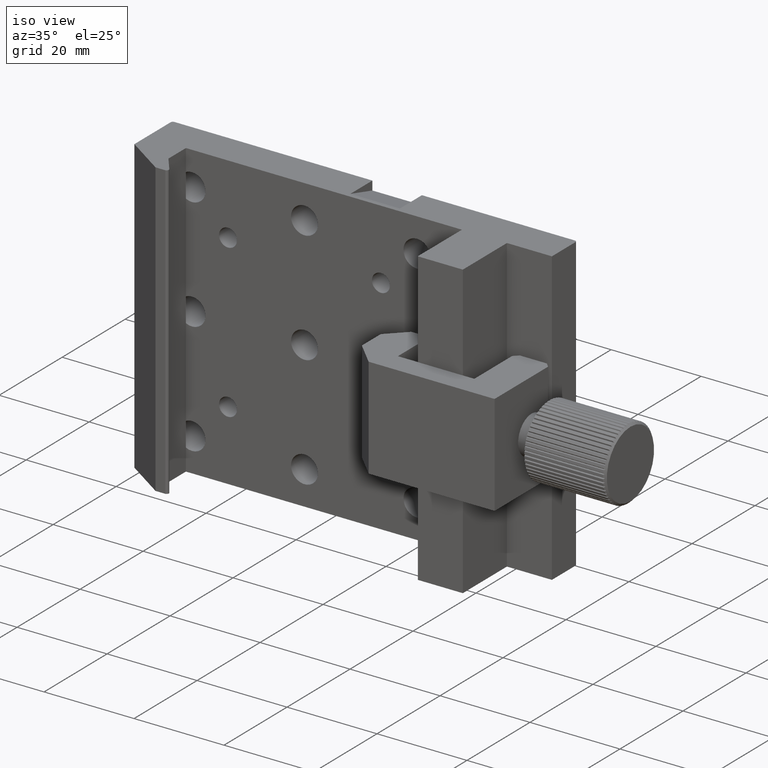
[diagram: clean part render]
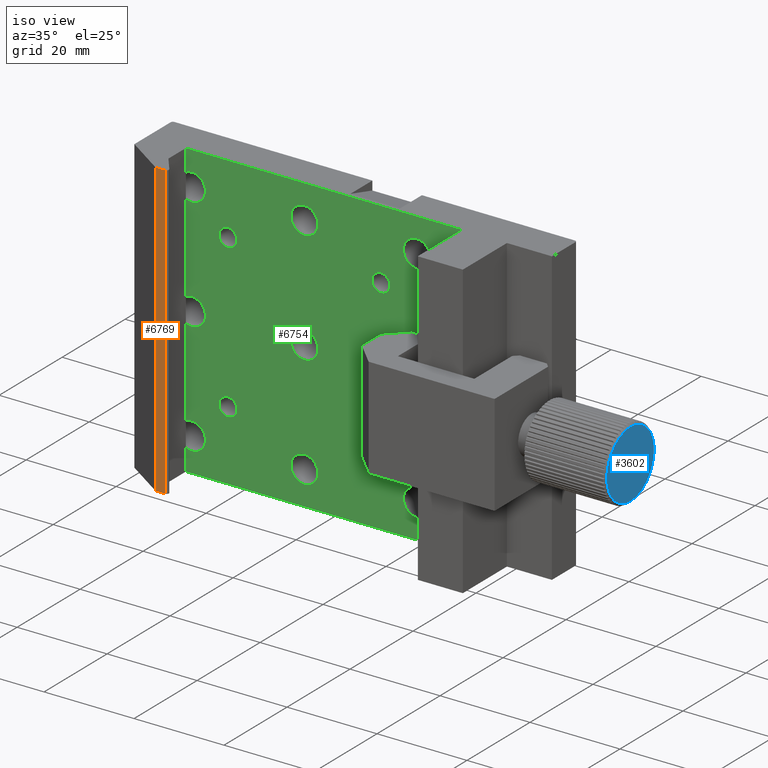
[diagram: same view with three faces highlighted in distinct colors, each labeled with its STEP entity id]
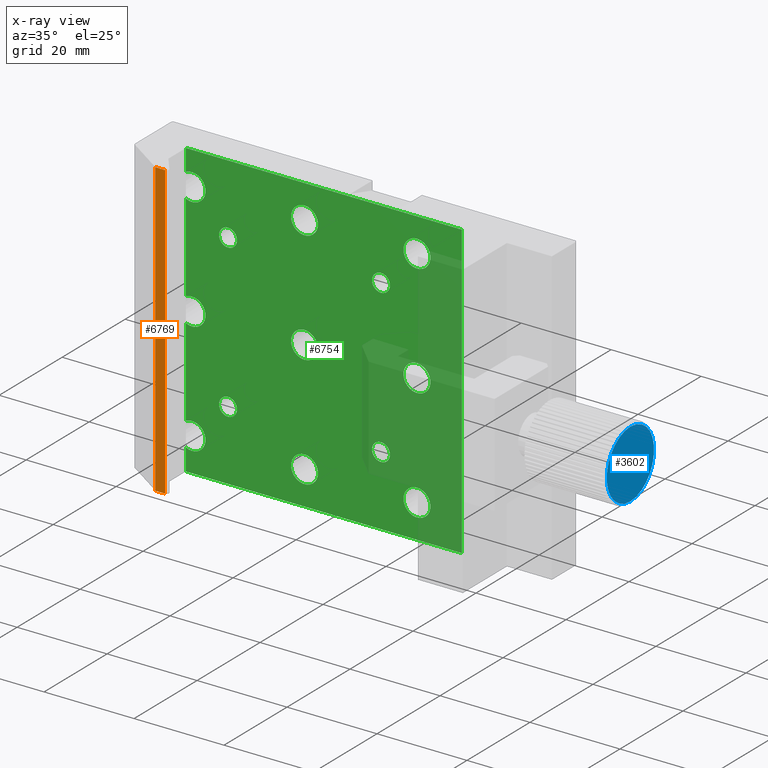
[diagram: x-ray of the same camera — body ghosted, the three highlighted faces saturated]
A machine part, iso view with three faces highlighted in distinct colors.
The next image is the same camera in x-ray (body ghosted, the three faces saturated) — at least one of them is partly hidden behind the body in this view.
Their STEP definitions:

[orange] entity #6769 — the highlighted planar face has unit normal (0, 1, -0).
#1163 = CARTESIAN_POINT ( 'NONE',  ( -68.47252651145957700, -0.9404695730432233200, 32.50000000000000000 ) ) ;
#1167 = CARTESIAN_POINT ( 'NONE',  ( -68.47252651145957700, -0.9404695730432233200, -32.50000000000000000 ) ) ;
#1169 = DIRECTION ( 'NONE',  ( 1.000000000000000000, -0.0000000000000000000, -0.0000000000000000000 ) ) ;
#1170 = DIRECTION ( 'NONE',  ( 1.000000000000000000, -0.0000000000000000000, -0.0000000000000000000 ) ) ;
#1171 = CARTESIAN_POINT ( 'NONE',  ( -70.57431584625358300, -0.9404695730432233200, 32.50000000000000000 ) ) ;
#1172 = DIRECTION ( 'NONE',  ( -0.0000000000000000000, -0.0000000000000000000, -1.000000000000000000 ) ) ;
#1399 = EDGE_LOOP ( 'NONE', ( #6667, #6666, #6665, #6664 ) ) ;
#2501 = EDGE_CURVE ( 'NONE', #5934, #5938, #4586, .T. ) ;
#2502 = EDGE_CURVE ( 'NONE', #5936, #5938, #4587, .T. ) ;
#2503 = EDGE_CURVE ( 'NONE', #5932, #5934, #4585, .T. ) ;
#2504 = EDGE_CURVE ( 'NONE', #5932, #5936, #4591, .T. ) ;
#4153 = FACE_OUTER_BOUND ( 'NONE', #1399, .T. ) ;
#4585 = LINE ( 'NONE', #1163, #4592 ) ;
#4586 = LINE ( 'NONE', #7076, #4588 ) ;
#4587 = LINE ( 'NONE', #1167, #4590 ) ;
#4588 = VECTOR ( 'NONE', #7075, 1000.000000000000000 ) ;
#4590 = VECTOR ( 'NONE', #1169, 1000.000000000000000 ) ;
#4591 = LINE ( 'NONE', #1171, #4594 ) ;
#4592 = VECTOR ( 'NONE', #1170, 1000.000000000000000 ) ;
#4594 = VECTOR ( 'NONE', #1172, 1000.000000000000000 ) ;
#4905 = CARTESIAN_POINT ( 'NONE',  ( -70.57431584625358300, -0.9404695730432233200, 32.50000000000000000 ) ) ;
#4907 = CARTESIAN_POINT ( 'NONE',  ( -68.47252651145957700, -0.9404695730432233200, 32.50000000000000000 ) ) ;
#4909 = CARTESIAN_POINT ( 'NONE',  ( -70.57431584625358300, -0.9404695730432233200, -32.50000000000000000 ) ) ;
#4911 = CARTESIAN_POINT ( 'NONE',  ( -68.47252651145957700, -0.9404695730432233200, -32.50000000000000000 ) ) ;
#5134 = CARTESIAN_POINT ( 'NONE',  ( -68.47252651145957700, -0.9404695730432233200, 32.50000000000000000 ) ) ;
#5139 = PLANE ( 'NONE',  #5192 ) ;
#5142 = DIRECTION ( 'NONE',  ( 0.0000000000000000000, 1.000000000000000000, -0.0000000000000000000 ) ) ;
#5143 = DIRECTION ( 'NONE',  ( 0.0000000000000000000, 0.0000000000000000000, 1.000000000000000000 ) ) ;
#5192 = AXIS2_PLACEMENT_3D ( 'NONE', #5134, #5142, #5143 ) ;
#5932 = VERTEX_POINT ( 'NONE', #4905 ) ;
#5934 = VERTEX_POINT ( 'NONE', #4907 ) ;
#5936 = VERTEX_POINT ( 'NONE', #4909 ) ;
#5938 = VERTEX_POINT ( 'NONE', #4911 ) ;
#6664 = ORIENTED_EDGE ( 'NONE', *, *, #2504, .T. ) ;
#6665 = ORIENTED_EDGE ( 'NONE', *, *, #2503, .F. ) ;
#6666 = ORIENTED_EDGE ( 'NONE', *, *, #2501, .F. ) ;
#6667 = ORIENTED_EDGE ( 'NONE', *, *, #2502, .T. ) ;
#6769 = ADVANCED_FACE ( 'NONE', ( #4153 ), #5139, .F. ) ;
#7075 = DIRECTION ( 'NONE',  ( -0.0000000000000000000, -0.0000000000000000000, -1.000000000000000000 ) ) ;
#7076 = CARTESIAN_POINT ( 'NONE',  ( -68.47252651145957700, -0.9404695730432233200, 32.50000000000000000 ) ) ;

[blue] entity #3602 — the highlighted planar face has unit normal (1, 0, 0).
#720 = EDGE_LOOP ( 'NONE', ( #2352 ) ) ;
#1232 = AXIS2_PLACEMENT_3D ( 'NONE', #3523, #3527, #3528 ) ;
#2352 = ORIENTED_EDGE ( 'NONE', *, *, #3372, .T. ) ;
#3181 = CARTESIAN_POINT ( 'NONE',  ( 33.58817508845302100, 1.059530426956774900, 0.0000000000000000000 ) ) ;
#3183 = DIRECTION ( 'NONE',  ( 1.000000000000000000, 0.0000000000000000000, 0.0000000000000000000 ) ) ;
#3185 = DIRECTION ( 'NONE',  ( 0.0000000000000000000, 0.0000000000000000000, -1.000000000000000000 ) ) ;
#3372 = EDGE_CURVE ( 'NONE', #4277, #4277, #6096, .T. ) ;
#3475 = AXIS2_PLACEMENT_3D ( 'NONE', #3181, #3183, #3185 ) ;
#3523 = CARTESIAN_POINT ( 'NONE',  ( 33.58817508845302100, 1.059530426956774900, 0.0000000000000000000 ) ) ;
#3524 = PLANE ( 'NONE',  #1232 ) ;
#3527 = DIRECTION ( 'NONE',  ( 1.000000000000000000, 0.0000000000000000000, 0.0000000000000000000 ) ) ;
#3528 = DIRECTION ( 'NONE',  ( 0.0000000000000000000, 0.0000000000000000000, -1.000000000000000000 ) ) ;
#3602 = ADVANCED_FACE ( 'NONE', ( #6176 ), #3524, .T. ) ;
#4277 = VERTEX_POINT ( 'NONE', #5666 ) ;
#5666 = CARTESIAN_POINT ( 'NONE',  ( 33.58817508845302100, 1.059530426956774900, -7.499999999999992900 ) ) ;
#6096 = CIRCLE ( 'NONE', #3475, 7.499999999999992900 ) ;
#6176 = FACE_OUTER_BOUND ( 'NONE', #720, .T. ) ;

[green] entity #6754 — the highlighted planar face has unit normal (-0, 1, 0).
#780 = ORIENTED_EDGE ( 'NONE', *, *, #2793, .T. ) ;
#781 = ORIENTED_EDGE ( 'NONE', *, *, #2791, .T. ) ;
#782 = ORIENTED_EDGE ( 'NONE', *, *, #2789, .T. ) ;
#783 = ORIENTED_EDGE ( 'NONE', *, *, #2787, .T. ) ;
#784 = ORIENTED_EDGE ( 'NONE', *, *, #2785, .T. ) ;
#785 = ORIENTED_EDGE ( 'NONE', *, *, #2783, .T. ) ;
#786 = ORIENTED_EDGE ( 'NONE', *, *, #2781, .T. ) ;
#787 = ORIENTED_EDGE ( 'NONE', *, *, #2779, .T. ) ;
#788 = ORIENTED_EDGE ( 'NONE', *, *, #2539, .T. ) ;
#789 = ORIENTED_EDGE ( 'NONE', *, *, #2537, .T. ) ;
#790 = ORIENTED_EDGE ( 'NONE', *, *, #2536, .T. ) ;
#791 = ORIENTED_EDGE ( 'NONE', *, *, #2795, .T. ) ;
#792 = ORIENTED_EDGE ( 'NONE', *, *, #2534, .T. ) ;
#793 = ORIENTED_EDGE ( 'NONE', *, *, #2481, .T. ) ;
#794 = ORIENTED_EDGE ( 'NONE', *, *, #2532, .T. ) ;
#795 = ORIENTED_EDGE ( 'NONE', *, *, #2477, .T. ) ;
#796 = ORIENTED_EDGE ( 'NONE', *, *, #2530, .T. ) ;
#797 = ORIENTED_EDGE ( 'NONE', *, *, #2796, .T. ) ;
#798 = ORIENTED_EDGE ( 'NONE', *, *, #2494, .F. ) ;
#799 = ORIENTED_EDGE ( 'NONE', *, *, #2524, .F. ) ;
#1213 = CARTESIAN_POINT ( 'NONE',  ( -9.469681657330072600, 9.059530426956774500, 32.50000000000000000 ) ) ;
#1214 = DIRECTION ( 'NONE',  ( 1.000000000000000000, 1.131034051166622500E-016, -0.0000000000000000000 ) ) ;
#1369 = AXIS2_PLACEMENT_3D ( 'NONE', #5087, #5084, #5089 ) ;
#2477 = EDGE_CURVE ( 'NONE', #5950, #5957, #4543, .T. ) ;
#2481 = EDGE_CURVE ( 'NONE', #5949, #5953, #4550, .T. ) ;
#2494 = EDGE_CURVE ( 'NONE', #5941, #5940, #4574, .T. ) ;
#2524 = EDGE_CURVE ( 'NONE', #5921, #5941, #7216, .T. ) ;
#2530 = EDGE_CURVE ( 'NONE', #5957, #5924, #7227, .T. ) ;
#2532 = EDGE_CURVE ( 'NONE', #5953, #5950, #7231, .T. ) ;
#2534 = EDGE_CURVE ( 'NONE', #5918, #5949, #7235, .T. ) ;
#2536 = EDGE_CURVE ( 'NONE', #5921, #5920, #7239, .T. ) ;
#2537 = EDGE_CURVE ( 'NONE', #4256, #4256, #7241, .T. ) ;
#2539 = EDGE_CURVE ( 'NONE', #4258, #4258, #7246, .T. ) ;
#2758 = CARTESIAN_POINT ( 'NONE',  ( -70.81968165733007900, 9.059530426956767400, 22.32091433507625000 ) ) ;
#2764 = CARTESIAN_POINT ( 'NONE',  ( -70.81968165733007900, 9.059530426956767400, 27.67908566492375400 ) ) ;
#2771 = CARTESIAN_POINT ( 'NONE',  ( -70.81968165733007900, 9.059530426956767400, 32.50000000000000000 ) ) ;
#2774 = CARTESIAN_POINT ( 'NONE',  ( -70.81968165733007900, 9.059530426956767400, -32.50000000000000000 ) ) ;
#2779 = EDGE_CURVE ( 'NONE', #4260, #4260, #7248, .T. ) ;
#2781 = EDGE_CURVE ( 'NONE', #4262, #4262, #7250, .T. ) ;
#2783 = EDGE_CURVE ( 'NONE', #4264, #4264, #7252, .T. ) ;
#2785 = EDGE_CURVE ( 'NONE', #4266, #4266, #7254, .T. ) ;
#2787 = EDGE_CURVE ( 'NONE', #4268, #4268, #7256, .T. ) ;
#2789 = EDGE_CURVE ( 'NONE', #4270, #4270, #7258, .T. ) ;
#2791 = EDGE_CURVE ( 'NONE', #4272, #4272, #7260, .T. ) ;
#2793 = EDGE_CURVE ( 'NONE', #4274, #4274, #7262, .T. ) ;
#2795 = EDGE_CURVE ( 'NONE', #5920, #5918, #7264, .T. ) ;
#2796 = EDGE_CURVE ( 'NONE', #5924, #5940, #7243, .T. ) ;
#2857 = EDGE_LOOP ( 'NONE', ( #781 ) ) ;
#2858 = EDGE_LOOP ( 'NONE', ( #780 ) ) ;
#2861 = EDGE_LOOP ( 'NONE', ( #782 ) ) ;
#2862 = EDGE_LOOP ( 'NONE', ( #783 ) ) ;
#2863 = EDGE_LOOP ( 'NONE', ( #784 ) ) ;
#2864 = EDGE_LOOP ( 'NONE', ( #785 ) ) ;
#2865 = EDGE_LOOP ( 'NONE', ( #786 ) ) ;
#2866 = EDGE_LOOP ( 'NONE', ( #787 ) ) ;
#2867 = EDGE_LOOP ( 'NONE', ( #788 ) ) ;
#2868 = EDGE_LOOP ( 'NONE', ( #789 ) ) ;
#2869 = EDGE_LOOP ( 'NONE', ( #790, #791, #792, #793, #794, #795, #796, #797, #798, #799 ) ) ;
#3428 = AXIS2_PLACEMENT_3D ( 'NONE', #7112, #7113, #7114 ) ;
#3882 = CARTESIAN_POINT ( 'NONE',  ( -70.81968165733007900, 9.059530426956767400, 32.50000000000000000 ) ) ;
#3883 = DIRECTION ( 'NONE',  ( -0.0000000000000000000, -0.0000000000000000000, -1.000000000000000000 ) ) ;
#3886 = CARTESIAN_POINT ( 'NONE',  ( -70.81968165733007900, 9.059530426956767400, 32.50000000000000000 ) ) ;
#3887 = DIRECTION ( 'NONE',  ( -0.0000000000000000000, -0.0000000000000000000, -1.000000000000000000 ) ) ;
#3890 = CARTESIAN_POINT ( 'NONE',  ( -70.81968165733007900, 9.059530426956767400, 32.50000000000000000 ) ) ;
#3891 = DIRECTION ( 'NONE',  ( -0.0000000000000000000, -0.0000000000000000000, -1.000000000000000000 ) ) ;
#3894 = CARTESIAN_POINT ( 'NONE',  ( -70.81968165733007900, 9.059530426956767400, 32.50000000000000000 ) ) ;
#3895 = DIRECTION ( 'NONE',  ( -0.0000000000000000000, -0.0000000000000000000, -1.000000000000000000 ) ) ;
#3896 = CARTESIAN_POINT ( 'NONE',  ( -61.46968165732970100, 9.059530426956774500, 17.00000000000000000 ) ) ;
#3897 = DIRECTION ( 'NONE',  ( -0.0000000000000000000, 1.000000000000000000, -0.0000000000000000000 ) ) ;
#3898 = DIRECTION ( 'NONE',  ( 0.0000000000000000000, 0.0000000000000000000, 1.000000000000000000 ) ) ;
#3902 = CARTESIAN_POINT ( 'NONE',  ( -27.46968165732970800, 9.059530426956774500, 16.99999999999953100 ) ) ;
#3903 = DIRECTION ( 'NONE',  ( -0.0000000000000000000, 1.000000000000000000, -0.0000000000000000000 ) ) ;
#3904 = DIRECTION ( 'NONE',  ( 0.0000000000000000000, 0.0000000000000000000, 1.000000000000000000 ) ) ;
#3908 = CARTESIAN_POINT ( 'NONE',  ( -27.46968165733006000, 9.059530426956774500, -17.00000000000047600 ) ) ;
#3909 = DIRECTION ( 'NONE',  ( -0.0000000000000000000, 1.000000000000000000, -0.0000000000000000000 ) ) ;
#3910 = DIRECTION ( 'NONE',  ( 0.0000000000000000000, 0.0000000000000000000, 1.000000000000000000 ) ) ;
#3914 = CARTESIAN_POINT ( 'NONE',  ( -61.46968165733006400, 9.059530426956774500, -17.00000000000000000 ) ) ;
#3915 = DIRECTION ( 'NONE',  ( -0.0000000000000000000, 1.000000000000000000, -0.0000000000000000000 ) ) ;
#3916 = DIRECTION ( 'NONE',  ( 0.0000000000000000000, 0.0000000000000000000, 1.000000000000000000 ) ) ;
#3920 = CARTESIAN_POINT ( 'NONE',  ( -19.46968165733023400, 9.059530426956772700, -25.00000000000000000 ) ) ;
#3921 = DIRECTION ( 'NONE',  ( -1.131034051166622500E-016, 1.000000000000000000, 0.0000000000000000000 ) ) ;
#3922 = DIRECTION ( 'NONE',  ( -1.000000000000000000, 0.0000000000000000000, 0.0000000000000000000 ) ) ;
#4078 = FACE_BOUND ( 'NONE', #2862, .T. ) ;
#4080 = FACE_BOUND ( 'NONE', #2861, .T. ) ;
#4102 = FACE_BOUND ( 'NONE', #2858, .T. ) ;
#4105 = FACE_BOUND ( 'NONE', #2863, .T. ) ;
#4107 = FACE_BOUND ( 'NONE', #2857, .T. ) ;
#4108 = FACE_BOUND ( 'NONE', #2864, .T. ) ;
#4109 = FACE_BOUND ( 'NONE', #2865, .T. ) ;
#4110 = FACE_BOUND ( 'NONE', #2866, .T. ) ;
#4111 = FACE_BOUND ( 'NONE', #2867, .T. ) ;
#4112 = FACE_BOUND ( 'NONE', #2868, .T. ) ;
#4113 = FACE_OUTER_BOUND ( 'NONE', #2869, .T. ) ;
#4256 = VERTEX_POINT ( 'NONE', #5645 ) ;
#4258 = VERTEX_POINT ( 'NONE', #5647 ) ;
#4260 = VERTEX_POINT ( 'NONE', #5649 ) ;
#4262 = VERTEX_POINT ( 'NONE', #5651 ) ;
#4264 = VERTEX_POINT ( 'NONE', #5653 ) ;
#4266 = VERTEX_POINT ( 'NONE', #5655 ) ;
#4268 = VERTEX_POINT ( 'NONE', #5657 ) ;
#4270 = VERTEX_POINT ( 'NONE', #5659 ) ;
#4272 = VERTEX_POINT ( 'NONE', #5661 ) ;
#4274 = VERTEX_POINT ( 'NONE', #5663 ) ;
#4543 = CIRCLE ( 'NONE', #7163, 2.999999999999988900 ) ;
#4550 = CIRCLE ( 'NONE', #7167, 2.999999999999988900 ) ;
#4574 = LINE ( 'NONE', #7067, #4576 ) ;
#4576 = VECTOR ( 'NONE', #7068, 1000.000000000000000 ) ;
#4913 = CARTESIAN_POINT ( 'NONE',  ( -9.469681657330072600, 9.059530426956774500, -32.50000000000000000 ) ) ;
#4914 = CARTESIAN_POINT ( 'NONE',  ( -9.469681657330072600, 9.059530426956774500, 32.50000000000000000 ) ) ;
#4922 = CARTESIAN_POINT ( 'NONE',  ( -70.81968165733007900, 9.059530426956767400, 2.679085664923797500 ) ) ;
#4923 = CARTESIAN_POINT ( 'NONE',  ( -70.81968165733007900, 9.059530426956767400, -22.32091433507616100 ) ) ;
#4926 = CARTESIAN_POINT ( 'NONE',  ( -70.81968165733007900, 9.059530426956767400, -2.679085664923797500 ) ) ;
#4930 = CARTESIAN_POINT ( 'NONE',  ( -70.81968165733007900, 9.059530426956767400, -27.67908566492383900 ) ) ;
#5084 = DIRECTION ( 'NONE',  ( -1.131034051166622500E-016, 1.000000000000000000, 0.0000000000000000000 ) ) ;
#5085 = PLANE ( 'NONE',  #1369 ) ;
#5087 = CARTESIAN_POINT ( 'NONE',  ( -9.469681657330072600, 9.059530426956774500, 32.50000000000000000 ) ) ;
#5089 = DIRECTION ( 'NONE',  ( -1.000000000000000000, -1.131034051166622500E-016, 0.0000000000000000000 ) ) ;
#5645 = CARTESIAN_POINT ( 'NONE',  ( -61.46968165732970100, 9.059530426956774500, 18.99999999999999600 ) ) ;
#5647 = CARTESIAN_POINT ( 'NONE',  ( -27.46968165732970800, 9.059530426956774500, 18.99999999999952400 ) ) ;
#5649 = CARTESIAN_POINT ( 'NONE',  ( -27.46968165733006000, 9.059530426956774500, -15.00000000000048100 ) ) ;
#5651 = CARTESIAN_POINT ( 'NONE',  ( -61.46968165733006400, 9.059530426956774500, -15.00000000000000700 ) ) ;
#5653 = CARTESIAN_POINT ( 'NONE',  ( -22.46968165733023100, 9.059530426956772700, -25.00000000000000000 ) ) ;
#5655 = CARTESIAN_POINT ( 'NONE',  ( -47.46968165733023400, 9.059530426956770900, -25.00000000000000000 ) ) ;
#5657 = CARTESIAN_POINT ( 'NONE',  ( -22.46968165733014500, 9.059530426956772700, 0.0000000000000000000 ) ) ;
#5659 = CARTESIAN_POINT ( 'NONE',  ( -47.46968165733014200, 9.059530426956770900, 0.0000000000000000000 ) ) ;
#5661 = CARTESIAN_POINT ( 'NONE',  ( -22.46968165733005700, 9.059530426956772700, 25.00000000000000000 ) ) ;
#5663 = CARTESIAN_POINT ( 'NONE',  ( -47.46968165733005700, 9.059530426956770900, 25.00000000000000000 ) ) ;
#5918 = VERTEX_POINT ( 'NONE', #2758 ) ;
#5920 = VERTEX_POINT ( 'NONE', #2764 ) ;
#5921 = VERTEX_POINT ( 'NONE', #2771 ) ;
#5924 = VERTEX_POINT ( 'NONE', #2774 ) ;
#5940 = VERTEX_POINT ( 'NONE', #4913 ) ;
#5941 = VERTEX_POINT ( 'NONE', #4914 ) ;
#5949 = VERTEX_POINT ( 'NONE', #4922 ) ;
#5950 = VERTEX_POINT ( 'NONE', #4923 ) ;
#5953 = VERTEX_POINT ( 'NONE', #4926 ) ;
#5957 = VERTEX_POINT ( 'NONE', #4930 ) ;
#6754 = ADVANCED_FACE ( 'NONE', ( #4102, #4107, #4080, #4078, #4105, #4108, #4109, #4110, #4111, #4112, #4113 ), #5085, .F. ) ;
#7023 = CARTESIAN_POINT ( 'NONE',  ( -69.46968165733024100, 9.059530426956767400, -25.00000000000000000 ) ) ;
#7024 = DIRECTION ( 'NONE',  ( -1.131034051166622500E-016, 1.000000000000000000, 0.0000000000000000000 ) ) ;
#7025 = DIRECTION ( 'NONE',  ( -1.000000000000000000, 0.0000000000000000000, 0.0000000000000000000 ) ) ;
#7036 = CARTESIAN_POINT ( 'NONE',  ( -69.46968165733015600, 9.059530426956767400, 0.0000000000000000000 ) ) ;
#7037 = DIRECTION ( 'NONE',  ( -1.131034051166622500E-016, 1.000000000000000000, 0.0000000000000000000 ) ) ;
#7038 = DIRECTION ( 'NONE',  ( -1.000000000000000000, 0.0000000000000000000, 0.0000000000000000000 ) ) ;
#7067 = CARTESIAN_POINT ( 'NONE',  ( -9.469681657330072600, 9.059530426956774500, 32.50000000000000000 ) ) ;
#7068 = DIRECTION ( 'NONE',  ( -0.0000000000000000000, -0.0000000000000000000, -1.000000000000000000 ) ) ;
#7080 = CARTESIAN_POINT ( 'NONE',  ( -44.46968165733023400, 9.059530426956770900, -25.00000000000000000 ) ) ;
#7081 = DIRECTION ( 'NONE',  ( -1.131034051166622500E-016, 1.000000000000000000, 0.0000000000000000000 ) ) ;
#7082 = DIRECTION ( 'NONE',  ( -1.000000000000000000, 0.0000000000000000000, 0.0000000000000000000 ) ) ;
#7086 = CARTESIAN_POINT ( 'NONE',  ( -19.46968165733015300, 9.059530426956772700, 0.0000000000000000000 ) ) ;
#7087 = DIRECTION ( 'NONE',  ( -1.131034051166622500E-016, 1.000000000000000000, 0.0000000000000000000 ) ) ;
#7088 = DIRECTION ( 'NONE',  ( -1.000000000000000000, 0.0000000000000000000, 0.0000000000000000000 ) ) ;
#7092 = CARTESIAN_POINT ( 'NONE',  ( -44.46968165733014900, 9.059530426956770900, 0.0000000000000000000 ) ) ;
#7093 = DIRECTION ( 'NONE',  ( -1.131034051166622500E-016, 1.000000000000000000, 0.0000000000000000000 ) ) ;
#7094 = DIRECTION ( 'NONE',  ( -1.000000000000000000, 0.0000000000000000000, 0.0000000000000000000 ) ) ;
#7098 = CARTESIAN_POINT ( 'NONE',  ( -19.46968165733006000, 9.059530426956772700, 25.00000000000000000 ) ) ;
#7099 = DIRECTION ( 'NONE',  ( -1.131034051166622500E-016, 1.000000000000000000, 0.0000000000000000000 ) ) ;
#7100 = DIRECTION ( 'NONE',  ( -1.000000000000000000, 0.0000000000000000000, 0.0000000000000000000 ) ) ;
#7101 = DIRECTION ( 'NONE',  ( 1.000000000000000000, 1.131034051166622500E-016, -0.0000000000000000000 ) ) ;
#7105 = CARTESIAN_POINT ( 'NONE',  ( -9.469681657330072600, 9.059530426956774500, -32.50000000000000000 ) ) ;
#7106 = CARTESIAN_POINT ( 'NONE',  ( -44.46968165733006400, 9.059530426956770900, 25.00000000000000000 ) ) ;
#7107 = DIRECTION ( 'NONE',  ( -1.131034051166622500E-016, 1.000000000000000000, 0.0000000000000000000 ) ) ;
#7108 = DIRECTION ( 'NONE',  ( -1.000000000000000000, 0.0000000000000000000, 0.0000000000000000000 ) ) ;
#7112 = CARTESIAN_POINT ( 'NONE',  ( -69.46968165733005700, 9.059530426956767400, 25.00000000000000000 ) ) ;
#7113 = DIRECTION ( 'NONE',  ( -1.131034051166622500E-016, 1.000000000000000000, 0.0000000000000000000 ) ) ;
#7114 = DIRECTION ( 'NONE',  ( -1.000000000000000000, 0.0000000000000000000, 0.0000000000000000000 ) ) ;
#7163 = AXIS2_PLACEMENT_3D ( 'NONE', #7023, #7024, #7025 ) ;
#7167 = AXIS2_PLACEMENT_3D ( 'NONE', #7036, #7037, #7038 ) ;
#7176 = AXIS2_PLACEMENT_3D ( 'NONE', #3896, #3897, #3898 ) ;
#7178 = AXIS2_PLACEMENT_3D ( 'NONE', #3902, #3903, #3904 ) ;
#7180 = AXIS2_PLACEMENT_3D ( 'NONE', #3908, #3909, #3910 ) ;
#7182 = AXIS2_PLACEMENT_3D ( 'NONE', #3914, #3915, #3916 ) ;
#7184 = AXIS2_PLACEMENT_3D ( 'NONE', #3920, #3921, #3922 ) ;
#7186 = AXIS2_PLACEMENT_3D ( 'NONE', #7080, #7081, #7082 ) ;
#7188 = AXIS2_PLACEMENT_3D ( 'NONE', #7086, #7087, #7088 ) ;
#7190 = AXIS2_PLACEMENT_3D ( 'NONE', #7092, #7093, #7094 ) ;
#7192 = AXIS2_PLACEMENT_3D ( 'NONE', #7098, #7099, #7100 ) ;
#7194 = AXIS2_PLACEMENT_3D ( 'NONE', #7106, #7107, #7108 ) ;
#7216 = LINE ( 'NONE', #1213, #7219 ) ;
#7219 = VECTOR ( 'NONE', #1214, 1000.000000000000000 ) ;
#7227 = LINE ( 'NONE', #3882, #7230 ) ;
#7230 = VECTOR ( 'NONE', #3883, 1000.000000000000000 ) ;
#7231 = LINE ( 'NONE', #3886, #7234 ) ;
#7234 = VECTOR ( 'NONE', #3887, 1000.000000000000000 ) ;
#7235 = LINE ( 'NONE', #3890, #7238 ) ;
#7238 = VECTOR ( 'NONE', #3891, 1000.000000000000000 ) ;
#7239 = LINE ( 'NONE', #3894, #7242 ) ;
#7241 = CIRCLE ( 'NONE', #7176, 1.999999999999994900 ) ;
#7242 = VECTOR ( 'NONE', #3895, 1000.000000000000000 ) ;
#7243 = LINE ( 'NONE', #7105, #7265 ) ;
#7246 = CIRCLE ( 'NONE', #7178, 1.999999999999994900 ) ;
#7248 = CIRCLE ( 'NONE', #7180, 1.999999999999994900 ) ;
#7250 = CIRCLE ( 'NONE', #7182, 1.999999999999994900 ) ;
#7252 = CIRCLE ( 'NONE', #7184, 2.999999999999995600 ) ;
#7254 = CIRCLE ( 'NONE', #7186, 2.999999999999995600 ) ;
#7256 = CIRCLE ( 'NONE', #7188, 2.999999999999995600 ) ;
#7258 = CIRCLE ( 'NONE', #7190, 2.999999999999995600 ) ;
#7260 = CIRCLE ( 'NONE', #7192, 2.999999999999995600 ) ;
#7262 = CIRCLE ( 'NONE', #7194, 2.999999999999995600 ) ;
#7264 = CIRCLE ( 'NONE', #3428, 2.999999999999988900 ) ;
#7265 = VECTOR ( 'NONE', #7101, 1000.000000000000000 ) ;